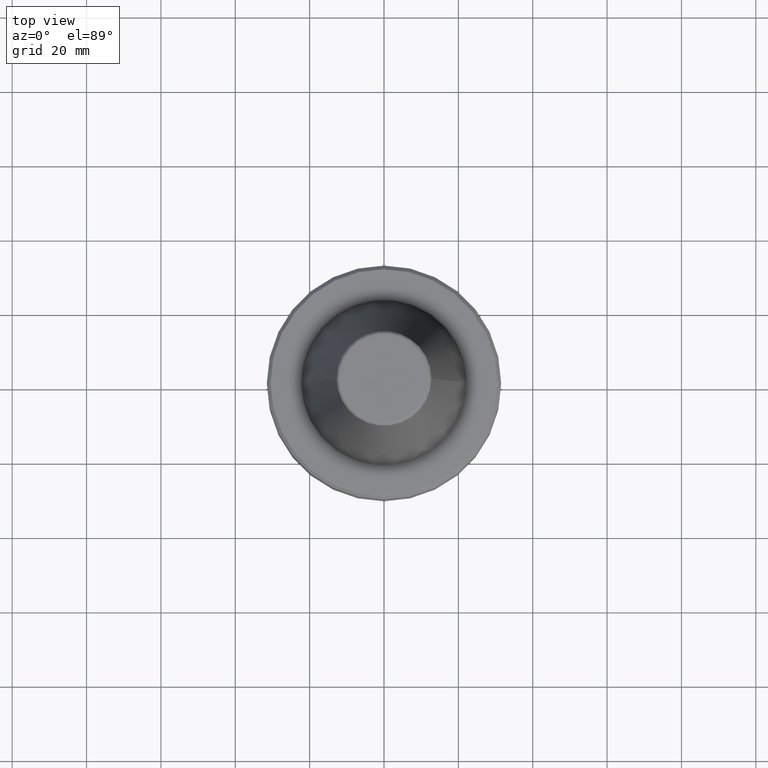
[diagram: clean part render]
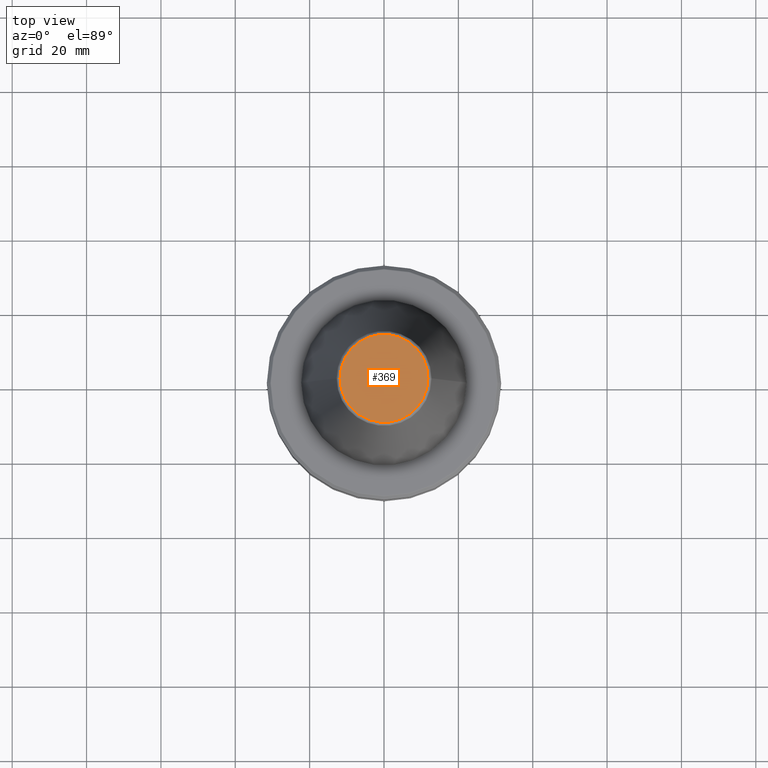
[diagram: same view with one face highlighted and labeled with its STEP entity id]
A machine part, top view. The second image highlights one B-rep face of the part: STEP entity #369.
In plain terms, the highlighted planar face has unit normal (0, -0, 1).
Its self-contained STEP definition (entity closure, byte-faithful):
#5 = CIRCLE ( 'NONE', #964, 11.82266672057007100 ) ;
#21 = VERTEX_POINT ( 'NONE', #657 ) ;
#200 = FACE_OUTER_BOUND ( 'NONE', #1438, .T. ) ;
#276 = AXIS2_PLACEMENT_3D ( 'NONE', #1643, #1121, #1050 ) ;
#278 = VERTEX_POINT ( 'NONE', #1446 ) ;
#369 = ADVANCED_FACE ( 'NONE', ( #200 ), #578, .T. ) ;
#487 = ORIENTED_EDGE ( 'NONE', *, *, #862, .T. ) ;
#578 = PLANE ( 'NONE',  #276 ) ;
#657 = CARTESIAN_POINT ( 'NONE',  ( 11.82266672057007100, 0.0000000000000000000, 65.40000000000000600 ) ) ;
#858 = DIRECTION ( 'NONE',  ( -0.0000000000000000000, -0.0000000000000000000, 1.000000000000000000 ) ) ;
#862 = EDGE_CURVE ( 'NONE', #21, #278, #5, .T. ) ;
#956 = DIRECTION ( 'NONE',  ( 1.000000000000000000, 0.0000000000000000000, 0.0000000000000000000 ) ) ;
#964 = AXIS2_PLACEMENT_3D ( 'NONE', #1291, #1288, #956 ) ;
#995 = DIRECTION ( 'NONE',  ( 1.000000000000000000, 0.0000000000000000000, 0.0000000000000000000 ) ) ;
#1026 = ORIENTED_EDGE ( 'NONE', *, *, #1281, .T. ) ;
#1050 = DIRECTION ( 'NONE',  ( 1.000000000000000000, 0.0000000000000000000, 0.0000000000000000000 ) ) ;
#1121 = DIRECTION ( 'NONE',  ( 0.0000000000000000000, -0.0000000000000000000, 1.000000000000000000 ) ) ;
#1281 = EDGE_CURVE ( 'NONE', #278, #21, #1606, .T. ) ;
#1288 = DIRECTION ( 'NONE',  ( -0.0000000000000000000, -0.0000000000000000000, 1.000000000000000000 ) ) ;
#1291 = CARTESIAN_POINT ( 'NONE',  ( 0.0000000000000000000, 0.0000000000000000000, 65.40000000000000600 ) ) ;
#1438 = EDGE_LOOP ( 'NONE', ( #487, #1026 ) ) ;
#1446 = CARTESIAN_POINT ( 'NONE',  ( -11.82266672057007100, 1.508450503654657300E-015, 65.40000000000000600 ) ) ;
#1606 = CIRCLE ( 'NONE', #1699, 11.82266672057007100 ) ;
#1643 = CARTESIAN_POINT ( 'NONE',  ( 0.0000000000000000000, 0.0000000000000000000, 65.40000000000000600 ) ) ;
#1699 = AXIS2_PLACEMENT_3D ( 'NONE', #1767, #858, #995 ) ;
#1767 = CARTESIAN_POINT ( 'NONE',  ( 0.0000000000000000000, 0.0000000000000000000, 65.40000000000000600 ) ) ;